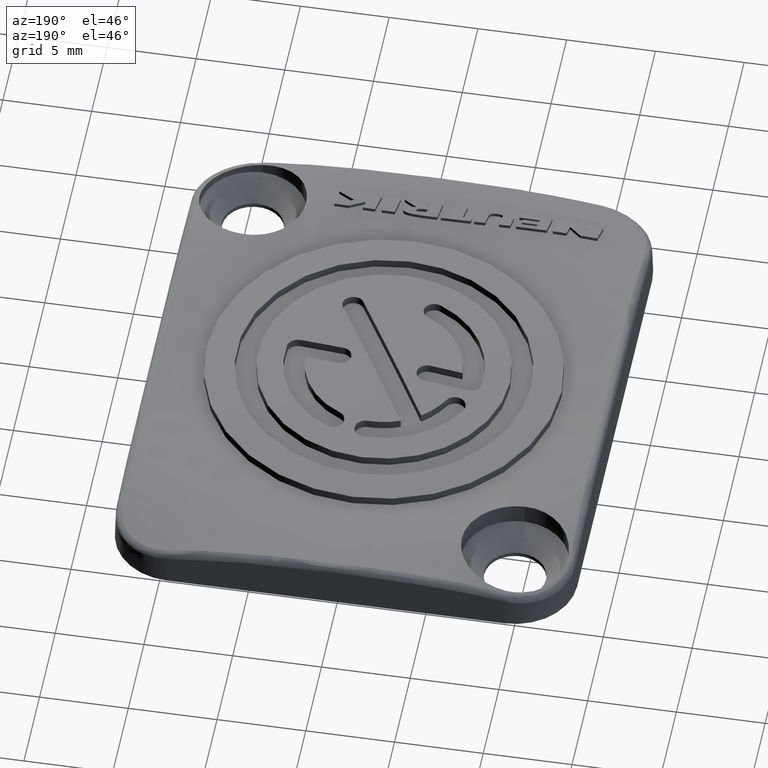
[diagram: clean part render]
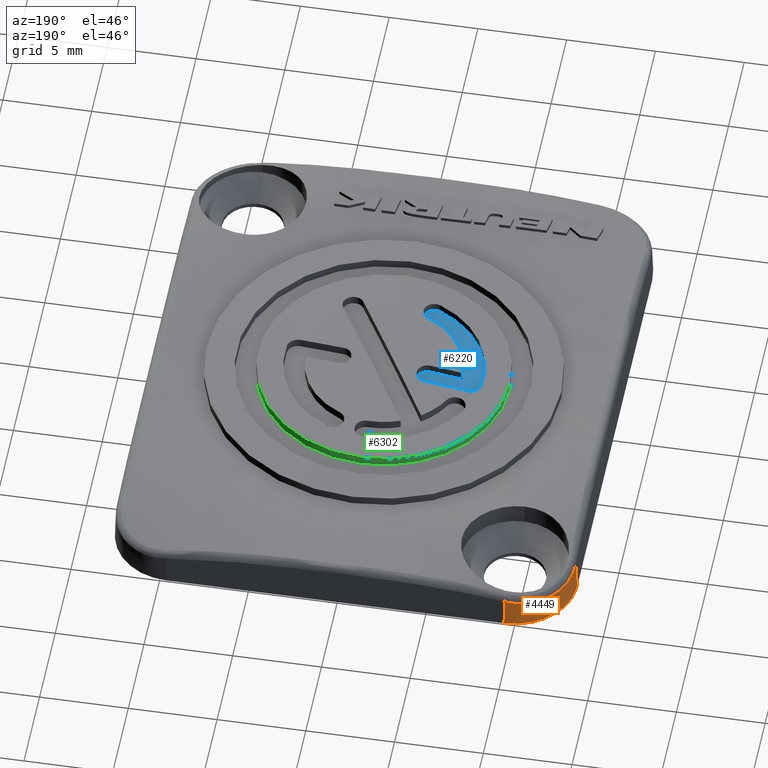
[diagram: same view with three faces highlighted in distinct colors, each labeled with its STEP entity id]
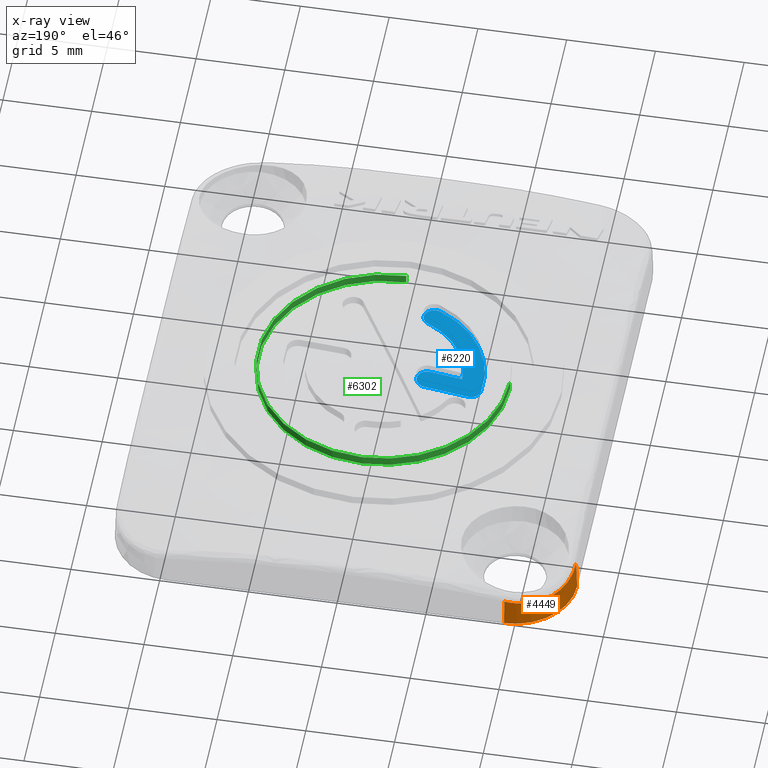
[diagram: x-ray of the same camera — body ghosted, the three highlighted faces saturated]
A machine part, auxiliary view with three faces highlighted in distinct colors.
The next image is the same camera in x-ray (body ghosted, the three faces saturated) — at least one of them is partly hidden behind the body in this view.
Their STEP definitions:

[orange] entity #4449 — the highlighted conical surface has half-angle 2 deg.
#232=CARTESIAN_POINT('',(-9.5E0,1.2E1,0.E0));
#233=DIRECTION('',(0.E0,0.E0,1.E0));
#234=DIRECTION('',(0.E0,1.E0,0.E0));
#235=AXIS2_PLACEMENT_3D('',#232,#233,#234);
#479=CARTESIAN_POINT('',(-1.293715147232E1,1.199999999971E1,1.799703371273E0));
#481=DIRECTION('',(3.490032926230E-2,-1.609019070524E-10,9.993907979451E-1));
#482=VECTOR('',#481,1.800800422591E0);
#483=CARTESIAN_POINT('',(-1.3E1,1.2E1,0.E0));
#484=LINE('',#483,#482);
#495=CARTESIAN_POINT('',(-1.293715147232E1,1.199999999971E1,1.799703371273E0));
#496=CARTESIAN_POINT('',(-1.293843621050E1,1.222119331044E1,1.762597083930E0));
#497=CARTESIAN_POINT('',(-1.289803904318E1,1.266253359539E1,1.690852363198E0));
#498=CARTESIAN_POINT('',(-1.271324545454E1,1.329799818324E1,1.599116019920E0));
#499=CARTESIAN_POINT('',(-1.240862796214E1,1.388587991106E1,1.530906071309E0));
#500=CARTESIAN_POINT('',(-1.202790834366E1,1.436881896807E1,1.494169960520E0));
#501=CARTESIAN_POINT('',(-1.161353421372E1,1.474123833895E1,1.485103146558E0));
#502=CARTESIAN_POINT('',(-1.120014755227E1,1.501125351787E1,1.496787235539E0));
#503=CARTESIAN_POINT('',(-1.080622759438E1,1.519850520092E1,1.521950084241E0));
#504=CARTESIAN_POINT('',(-1.043937172994E1,1.532186924713E1,1.555144666282E0));
#505=CARTESIAN_POINT('',(-1.010095035808E1,1.539682675997E1,1.592720950030E0));
#506=CARTESIAN_POINT('',(-9.789658076233E0,1.543523265518E1,1.632326391887E0));
#507=CARTESIAN_POINT('',(-9.593889575057E0,1.544203661239E1,1.659838708782E0));
#508=CARTESIAN_POINT('',(-9.499999999999E0,1.544155858815E1,1.673538211332E0));
#510=DIRECTION('',(7.786207921521E-13,-3.489959794101E-2,9.993908234838E-1));
#511=VECTOR('',#510,1.674558312932E0);
#512=CARTESIAN_POINT('',(-9.5E0,1.55E1,0.E0));
#513=LINE('',#512,#511);
#3271=CARTESIAN_POINT('',(-9.5E0,1.55E1,0.E0));
#3272=VERTEX_POINT('',#3271);
#3273=CARTESIAN_POINT('',(-1.3E1,1.2E1,0.E0));
#3274=VERTEX_POINT('',#3273);
#3669=VERTEX_POINT('',#479);
#3671=VERTEX_POINT('',#508);
#4437=CARTESIAN_POINT('',(-9.5E0,1.2E1,8.998517117857E-1));
#4438=DIRECTION('',(0.E0,0.E0,-1.E0));
#4439=DIRECTION('',(-1.E0,0.E0,0.E0));
#4440=AXIS2_PLACEMENT_3D('',#4437,#4438,#4439);
#4441=CONICAL_SURFACE('',#4440,3.468576485796E0,2.E0);
#4442=ORIENTED_EDGE('',*,*,#4427,.F.);
#4443=ORIENTED_EDGE('',*,*,#4203,.F.);
#4444=ORIENTED_EDGE('',*,*,#3689,.F.);
#4446=ORIENTED_EDGE('',*,*,#4445,.T.);
#4447=EDGE_LOOP('',(#4442,#4443,#4444,#4446));
#4448=FACE_OUTER_BOUND('',#4447,.F.);
#236=CIRCLE('',#235,3.5E0);
#509=B_SPLINE_CURVE_WITH_KNOTS('',3,(#495,#496,#497,#498,#499,#500,#501,#502,
#503,#504,#505,#506,#507,#508),.UNSPECIFIED.,.F.,.F.,(4,1,1,1,1,1,1,1,1,1,1,4),(
0.E0,9.090909090909E-2,1.818181818182E-1,2.727272727273E-1,3.636363636364E-1,
4.545454545455E-1,5.454545454545E-1,6.363636363636E-1,7.272727272727E-1,
8.181818181818E-1,9.090909090909E-1,1.E0),.UNSPECIFIED.);
#3689=EDGE_CURVE('',#3272,#3274,#236,.T.);
#4203=EDGE_CURVE('',#3274,#3669,#484,.T.);
#4427=EDGE_CURVE('',#3669,#3671,#509,.T.);
#4445=EDGE_CURVE('',#3272,#3671,#513,.T.);
#4449=ADVANCED_FACE('',(#4448),#4441,.T.);

[blue] entity #6220 — the highlighted spherical surface has radius 120 mm.
#2607=CARTESIAN_POINT('',(-2.277725201224E0,-5.115854562799E0,
2.569262115023E0));
#2608=CARTESIAN_POINT('',(-2.218577951E0,-5.142188615256E0,2.569262115023E0));
#2609=CARTESIAN_POINT('',(-2.091471660134E0,-5.175649887576E0,
2.570143513226E0));
#2610=CARTESIAN_POINT('',(-1.893803728198E0,-5.162241027028E0,
2.574008008647E0));
#2611=CARTESIAN_POINT('',(-1.710634270279E0,-5.085995802285E0,
2.580020668993E0));
#2612=CARTESIAN_POINT('',(-1.562254865599E0,-4.955736648939E0,
2.587500812172E0));
#2613=CARTESIAN_POINT('',(-1.463948912583E0,-4.786516432480E0,
2.595615440480E0));
#2614=CARTESIAN_POINT('',(-1.424826428945E0,-4.599020782288E0,
2.603421891314E0));
#2615=CARTESIAN_POINT('',(-1.443955285573E0,-4.415520151965E0,
2.610087701642E0));
#2616=CARTESIAN_POINT('',(-1.514728921714E0,-4.249291290116E0,
2.615219387508E0));
#2617=CARTESIAN_POINT('',(-1.630783811556E0,-4.110954778192E0,
2.618520527520E0));
#2618=CARTESIAN_POINT('',(-1.733885208179E0,-4.044424193713E0,
2.619306202129E0));
#2619=CARTESIAN_POINT('',(-1.789641229534E0,-4.019600013627E0,
2.619306202129E0));
#2621=CARTESIAN_POINT('',(0.E0,0.E0,2.569262115023E0));
#2622=DIRECTION('',(0.E0,0.E0,1.E0));
#2623=DIRECTION('',(-9.945218953683E-1,1.045284632677E-1,0.E0));
#2624=AXIS2_PLACEMENT_3D('',#2621,#2622,#2623);
#2626=CARTESIAN_POINT('',(-4.909892398881E0,1.119355453559E0,2.594286769637E0));
#2627=CARTESIAN_POINT('',(-4.970530515751E0,1.125728776461E0,2.591744024265E0));
#2628=CARTESIAN_POINT('',(-5.094859430949E0,1.119883967364E0,2.586612800054E0));
#2629=CARTESIAN_POINT('',(-5.272490987858E0,1.053982190979E0,2.579532137676E0));
#2630=CARTESIAN_POINT('',(-5.424474526035E0,9.328031167059E-1,
2.573755992993E0));
#2631=CARTESIAN_POINT('',(-5.529406810924E0,7.718909857594E-1,
2.570104673746E0));
#2632=CARTESIAN_POINT('',(-5.562719448998E0,6.481843132688E-1,
2.569262115023E0));
#2633=CARTESIAN_POINT('',(-5.569322614062E0,5.853593942989E-1,
2.569262115023E0));
#2635=CARTESIAN_POINT('',(6.271707796059E-2,5.967131372210E-1,-1.173E2));
#2636=DIRECTION('',(1.045284632677E-1,9.945218953683E-1,0.E0));
#2637=DIRECTION('',(-4.143893029688E-2,4.355407079081E-3,9.991315456360E-1));
#2638=AXIS2_PLACEMENT_3D('',#2635,#2636,#2637);
#2640=CARTESIAN_POINT('',(-2.549021816381E0,-3.353919790518E-1,
2.672455172010E0));
#2641=CARTESIAN_POINT('',(-2.512838391344E0,-3.391950102697E-1,
2.673213319649E0));
#2642=CARTESIAN_POINT('',(-2.439626643316E0,-3.402110739038E-1,
2.674732755841E0));
#2643=CARTESIAN_POINT('',(-2.330896746421E0,-3.217157331163E-1,
2.676945721078E0));
#2644=CARTESIAN_POINT('',(-2.226955792954E0,-2.834252352691E-1,
2.679016289561E0));
#2645=CARTESIAN_POINT('',(-2.133334116823E0,-2.278994495775E-1,
2.680835442178E0));
#2646=CARTESIAN_POINT('',(-2.049545524608E0,-1.553329779446E-1,
2.682413689657E0));
#2647=CARTESIAN_POINT('',(-1.975910194776E0,-6.191435726102E-2,
2.683736105143E0));
#2648=CARTESIAN_POINT('',(-1.917681934265E0,5.361884376196E-2,
2.684691078957E0));
#2649=CARTESIAN_POINT('',(-1.883095502236E0,1.984796197638E-1,
2.685092272292E0));
#2650=CARTESIAN_POINT('',(-1.887102144546E0,3.477541648184E-1,
2.684684135533E0));
#2651=CARTESIAN_POINT('',(-1.920449862896E0,4.729396602740E-1,
2.683720458164E0));
#2652=CARTESIAN_POINT('',(-1.973207360031E0,5.792210947967E-1,
2.682395732182E0));
#2653=CARTESIAN_POINT('',(-2.040022186528E0,6.671965091482E-1,
2.680819559478E0));
#2654=CARTESIAN_POINT('',(-2.119975036769E0,7.406912775188E-1,
2.679002649225E0));
#2655=CARTESIAN_POINT('',(-2.213531415941E0,7.995221181657E-1,
2.676935742498E0));
#2656=CARTESIAN_POINT('',(-2.315845081264E0,8.400657717606E-1,
2.674727149396E0));
#2657=CARTESIAN_POINT('',(-2.387495323411E0,8.542408379055E-1,
2.673211411092E0));
#2658=CARTESIAN_POINT('',(-2.423587660460E0,8.580342953901E-1,
2.672455172010E0));
#2660=CARTESIAN_POINT('',(-6.271707796059E-2,-5.967131372210E-1,-1.173E2));
#2661=DIRECTION('',(-1.045284632677E-1,-9.945218953683E-1,0.E0));
#2662=DIRECTION('',(-2.071946514844E-2,2.177703539541E-3,9.997829571318E-1));
#2663=AXIS2_PLACEMENT_3D('',#2660,#2661,#2662);
#2665=CARTESIAN_POINT('',(0.E0,0.E0,2.619306202129E0));
#2666=DIRECTION('',(0.E0,0.E0,1.E0));
#2667=DIRECTION('',(-9.994857993203E-1,-3.206457479856E-2,0.E0));
#2668=AXIS2_PLACEMENT_3D('',#2665,#2666,#2667);
#3379=VERTEX_POINT('',#2607);
#3380=VERTEX_POINT('',#2619);
#3383=CARTESIAN_POINT('',(-4.397737517009E0,-1.410841291137E-1,
2.619306202129E0));
#3384=VERTEX_POINT('',#3383);
#3387=CARTESIAN_POINT('',(-2.549021816381E0,-3.353919790518E-1,
2.672455172010E0));
#3388=VERTEX_POINT('',#3387);
#3391=VERTEX_POINT('',#2658);
#3393=CARTESIAN_POINT('',(-4.909892398881E0,1.119355453559E0,2.594286769637E0));
#3394=VERTEX_POINT('',#3393);
#3397=VERTEX_POINT('',#2633);
#6199=CARTESIAN_POINT('',(0.E0,0.E0,-1.173E2));
#6200=DIRECTION('',(0.E0,0.E0,-1.E0));
#6201=DIRECTION('',(0.E0,-1.E0,0.E0));
#6202=AXIS2_PLACEMENT_3D('',#6199,#6200,#6201);
#6203=SPHERICAL_SURFACE('',#6202,1.2E2);
#6205=ORIENTED_EDGE('',*,*,#6204,.F.);
#6207=ORIENTED_EDGE('',*,*,#6206,.F.);
#6209=ORIENTED_EDGE('',*,*,#6208,.F.);
#6211=ORIENTED_EDGE('',*,*,#6210,.T.);
#6213=ORIENTED_EDGE('',*,*,#6212,.F.);
#6215=ORIENTED_EDGE('',*,*,#6214,.T.);
#6217=ORIENTED_EDGE('',*,*,#6216,.T.);
#6218=EDGE_LOOP('',(#6205,#6207,#6209,#6211,#6213,#6215,#6217));
#6219=FACE_OUTER_BOUND('',#6218,.F.);
#2620=B_SPLINE_CURVE_WITH_KNOTS('',3,(#2607,#2608,#2609,#2610,#2611,#2612,#2613,
#2614,#2615,#2616,#2617,#2618,#2619),.UNSPECIFIED.,.F.,.F.,(4,1,1,1,1,1,1,1,1,1,
4),(0.E0,1.E-1,2.E-1,3.E-1,4.E-1,5.E-1,6.E-1,7.E-1,8.E-1,9.E-1,1.E0),
.UNSPECIFIED.);
#2625=CIRCLE('',#2624,5.6E0);
#2634=B_SPLINE_CURVE_WITH_KNOTS('',3,(#2626,#2627,#2628,#2629,#2630,#2631,#2632,
#2633),.UNSPECIFIED.,.F.,.F.,(4,1,1,1,1,4),(0.E0,2.E-1,4.E-1,6.E-1,8.E-1,1.E0),
.UNSPECIFIED.);
#2639=CIRCLE('',#2638,1.199984999906E2);
#2659=B_SPLINE_CURVE_WITH_KNOTS('',3,(#2640,#2641,#2642,#2643,#2644,#2645,#2646,
#2647,#2648,#2649,#2650,#2651,#2652,#2653,#2654,#2655,#2656,#2657,#2658),
.UNSPECIFIED.,.F.,.F.,(4,1,1,1,1,1,1,1,1,1,1,1,1,1,1,1,4),(0.E0,6.25E-2,1.25E-1,
1.875E-1,2.5E-1,3.125E-1,3.75E-1,4.375E-1,5.E-1,5.625E-1,6.25E-1,6.875E-1,
7.5E-1,8.125E-1,8.75E-1,9.375E-1,1.E0),.UNSPECIFIED.);
#2664=CIRCLE('',#2663,1.199984999906E2);
#2669=CIRCLE('',#2668,4.4E0);
#6204=EDGE_CURVE('',#3379,#3380,#2620,.T.);
#6206=EDGE_CURVE('',#3397,#3379,#2625,.T.);
#6208=EDGE_CURVE('',#3394,#3397,#2634,.T.);
#6210=EDGE_CURVE('',#3394,#3391,#2639,.T.);
#6212=EDGE_CURVE('',#3388,#3391,#2659,.T.);
#6214=EDGE_CURVE('',#3388,#3384,#2664,.T.);
#6216=EDGE_CURVE('',#3384,#3380,#2669,.T.);
#6220=ADVANCED_FACE('',(#6219),#6203,.T.);

[green] entity #6302 — the highlighted cylindrical surface (partial cylindrical patch) has radius 7.1 mm, axis along (0, 0, 1).
#2397=CARTESIAN_POINT('',(0.E0,0.E0,2.990648015546E0));
#2398=DIRECTION('',(0.E0,0.E0,1.E0));
#2399=DIRECTION('',(0.E0,1.E0,0.E0));
#2400=AXIS2_PLACEMENT_3D('',#2397,#2398,#2399);
#2533=CARTESIAN_POINT('',(0.E0,0.E0,2.489774187950E0));
#2534=DIRECTION('',(0.E0,0.E0,1.E0));
#2535=DIRECTION('',(0.E0,1.E0,0.E0));
#2536=AXIS2_PLACEMENT_3D('',#2533,#2534,#2535);
#2781=CARTESIAN_POINT('',(0.E0,0.E0,2.990648015546E0));
#2782=DIRECTION('',(0.E0,0.E0,1.E0));
#2783=DIRECTION('',(0.E0,-1.E0,0.E0));
#2784=AXIS2_PLACEMENT_3D('',#2781,#2782,#2783);
#2786=CARTESIAN_POINT('',(0.E0,0.E0,2.489774187950E0));
#2787=DIRECTION('',(0.E0,0.E0,-1.E0));
#2788=DIRECTION('',(0.E0,1.E0,0.E0));
#2789=AXIS2_PLACEMENT_3D('',#2786,#2787,#2788);
#2791=DIRECTION('',(0.E0,0.E0,1.E0));
#2792=VECTOR('',#2791,5.008738275963E-1);
#2793=CARTESIAN_POINT('',(0.E0,-7.1E0,2.489774187950E0));
#2794=LINE('',#2793,#2792);
#2795=DIRECTION('',(1.773257796205E-14,0.E0,1.E0));
#2796=VECTOR('',#2795,5.008738275963E-1);
#2797=CARTESIAN_POINT('',(-7.1E0,0.E0,2.489774187950E0));
#2798=LINE('',#2797,#2796);
#3353=CARTESIAN_POINT('',(-7.1E0,0.E0,2.489774187950E0));
#3354=CARTESIAN_POINT('',(0.E0,-7.1E0,2.489774187950E0));
#3355=VERTEX_POINT('',#3353);
#3356=VERTEX_POINT('',#3354);
#3357=CARTESIAN_POINT('',(-7.1E0,0.E0,2.990648015546E0));
#3358=CARTESIAN_POINT('',(0.E0,-7.1E0,2.990648015546E0));
#3359=VERTEX_POINT('',#3357);
#3360=VERTEX_POINT('',#3358);
#3361=CARTESIAN_POINT('',(0.E0,7.1E0,2.489774187950E0));
#3362=VERTEX_POINT('',#3361);
#3363=CARTESIAN_POINT('',(0.E0,7.1E0,2.990648015546E0));
#3364=VERTEX_POINT('',#3363);
#6287=CARTESIAN_POINT('',(0.E0,0.E0,-2.700804707802E-1));
#6288=DIRECTION('',(0.E0,0.E0,1.E0));
#6289=DIRECTION('',(1.E0,0.E0,0.E0));
#6290=AXIS2_PLACEMENT_3D('',#6287,#6288,#6289);
#6291=CYLINDRICAL_SURFACE('',#6290,7.1E0);
#6292=ORIENTED_EDGE('',*,*,#6017,.T.);
#6293=ORIENTED_EDGE('',*,*,#6098,.T.);
#6295=ORIENTED_EDGE('',*,*,#6294,.F.);
#6296=ORIENTED_EDGE('',*,*,#6163,.F.);
#6297=ORIENTED_EDGE('',*,*,#6228,.T.);
#6299=ORIENTED_EDGE('',*,*,#6298,.T.);
#6300=EDGE_LOOP('',(#6292,#6293,#6295,#6296,#6297,#6299));
#6301=FACE_OUTER_BOUND('',#6300,.F.);
#2401=CIRCLE('',#2400,7.1E0);
#2537=CIRCLE('',#2536,7.1E0);
#2785=CIRCLE('',#2784,7.1E0);
#2790=CIRCLE('',#2789,7.1E0);
#6017=EDGE_CURVE('',#3360,#3364,#2785,.T.);
#6098=EDGE_CURVE('',#3364,#3359,#2401,.T.);
#6163=EDGE_CURVE('',#3362,#3355,#2537,.T.);
#6228=EDGE_CURVE('',#3362,#3356,#2790,.T.);
#6294=EDGE_CURVE('',#3355,#3359,#2798,.T.);
#6298=EDGE_CURVE('',#3356,#3360,#2794,.T.);
#6302=ADVANCED_FACE('',(#6301),#6291,.T.);